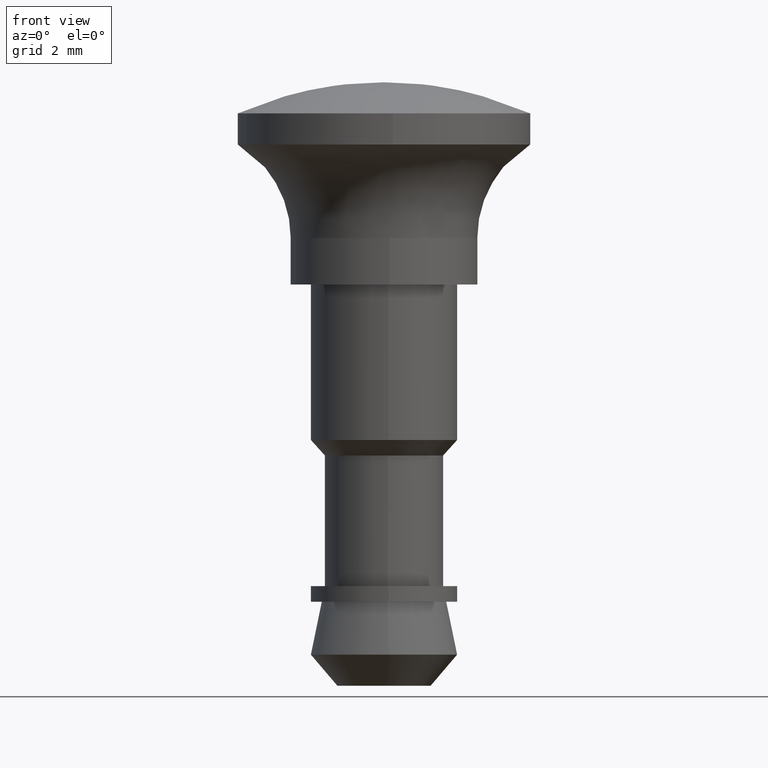
[diagram: clean part render]
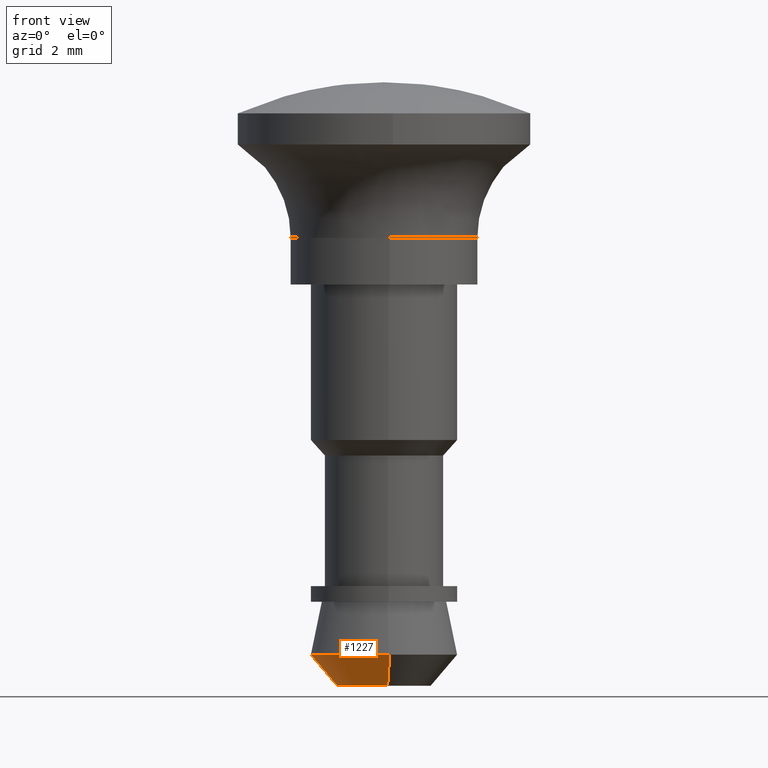
[diagram: same view with one face highlighted and labeled with its STEP entity id]
A machine part, front view. The second image highlights one B-rep face of the part: STEP entity #1227.
In plain terms, the highlighted face is a freeform B-spline surface patch.
Its self-contained STEP definition (entity closure, byte-faithful):
#1016=CARTESIAN_POINT('',(0.143462680722005,-2.345597286102278,-11.900205081862090));
#1017=VERTEX_POINT('',#1016);
#1023=CARTESIAN_POINT('',(0.184377345371360,-2.342736298536056,-11.900205289215339));
#1024=VERTEX_POINT('',#1023);
#1025=CARTESIAN_POINT('',(0.184377345371360,-2.342736298536056,-11.900205289215343));
#1026=CARTESIAN_POINT('',(0.163932401260749,-2.344345350529565,-11.900205289220658));
#1027=CARTESIAN_POINT('',(0.143462680722006,-2.345597286102278,-11.900205081862081));
#1035=(BOUNDED_CURVE()B_SPLINE_CURVE(2,(#1025,#1026,#1027),.UNSPECIFIED.,.F.,.U.)B_SPLINE_CURVE_WITH_KNOTS((3,3),(0.736331300627446,0.739332990840911),.UNSPECIFIED.)CURVE()GEOMETRIC_REPRESENTATION_ITEM()RATIONAL_B_SPLINE_CURVE((0.969723356160711,0.972855505401554,0.976072102966187))REPRESENTATION_ITEM(''));
#1036=EDGE_CURVE('',#1024,#1017,#1035,.T.);
#1076=CARTESIAN_POINT('',(-0.184377345371360,2.342736298536056,-11.900205289215339));
#1077=VERTEX_POINT('',#1076);
#1093=CARTESIAN_POINT('',(-2.349980504162365,0.0,-11.900205289220660));
#1094=VERTEX_POINT('',#1093);
#1095=CARTESIAN_POINT('',(-2.349980504162365,0.0,-11.900205289220660));
#1096=CARTESIAN_POINT('',(-2.349980504162365,2.172299633562215,-11.900205289220660));
#1097=CARTESIAN_POINT('',(-0.184377345371360,2.342736298536056,-11.900205289215343));
#1105=(BOUNDED_CURVE()B_SPLINE_CURVE(2,(#1095,#1096,#1097),.UNSPECIFIED.,.F.,.U.)B_SPLINE_CURVE_WITH_KNOTS((3,3),(0.0,0.236331300627446),.UNSPECIFIED.)CURVE()GEOMETRIC_REPRESENTATION_ITEM()RATIONAL_B_SPLINE_CURVE((1.0,0.723120658611431,0.969723356160711))REPRESENTATION_ITEM(''));
#1106=EDGE_CURVE('',#1094,#1077,#1105,.T.);
#1108=CARTESIAN_POINT('',(0.143462680722005,-2.345597286102279,-11.900205081862085));
#1109=CARTESIAN_POINT('',(0.071798203168230,-2.349980504162364,-11.900205289220660));
#1110=CARTESIAN_POINT('',(0.0,-2.349980504162365,-11.900205289220660));
#1111=CARTESIAN_POINT('',(-2.349980504162365,-2.349980504162365,-11.900205289220660));
#1112=CARTESIAN_POINT('',(-2.349980504162365,0.0,-11.900205289220660));
#1120=(BOUNDED_CURVE()B_SPLINE_CURVE(2,(#1108,#1109,#1110,#1111,#1112),.UNSPECIFIED.,.F.,.U.)B_SPLINE_CURVE_WITH_KNOTS((3,2,3),(0.739332990840912,0.750000000000000,1.0),.UNSPECIFIED.)CURVE()GEOMETRIC_REPRESENTATION_ITEM()RATIONAL_B_SPLINE_CURVE((0.976072102966189,0.987502821409128,1.0,0.707106781186548,1.0))REPRESENTATION_ITEM(''));
#1121=EDGE_CURVE('',#1017,#1094,#1120,.T.);
#1160=CARTESIAN_POINT('',(-0.116013383990884,1.474089809124613,-12.925302367769479));
#1161=CARTESIAN_POINT('',(-1.590103193115497,1.358076425133729,-12.925302367769484));
#1162=CARTESIAN_POINT('',(-1.474089809124613,-0.116013383990884,-12.925302367769479));
#1163=CARTESIAN_POINT('',(-1.358076425133729,-1.590103193115497,-12.925302367769484));
#1164=CARTESIAN_POINT('',(0.116013383990884,-1.474089809124613,-12.925302367769479));
#1165=CARTESIAN_POINT('',(-0.186086444368246,2.364452460769696,-11.874577862256940));
#1166=CARTESIAN_POINT('',(-2.550538905137942,2.178366016401451,-11.874577862256936));
#1167=CARTESIAN_POINT('',(-2.364452460769696,-0.186086444368246,-11.874577862256940));
#1168=CARTESIAN_POINT('',(-2.178366016401451,-2.550538905137942,-11.874577862256936));
#1169=CARTESIAN_POINT('',(0.186086444368246,-2.364452460769696,-11.874577862256940));
#1177=(BOUNDED_SURFACE()B_SPLINE_SURFACE(2,1,((#1160,#1165),(#1161,#1166),(#1162,#1167),(#1163,#1168),(#1164,#1169)),.UNSPECIFIED.,.F.,.F.,.U.)B_SPLINE_SURFACE_WITH_KNOTS((3,2,3),(2,2),(0.0,3.929666959123920,7.859333918247839),(0.0,1.0),.UNSPECIFIED.)GEOMETRIC_REPRESENTATION_ITEM()RATIONAL_B_SPLINE_SURFACE(((1.0,1.0),(0.707106781186548,0.707106781186548),(1.0,1.0),(0.707106781186548,0.707106781186548),(1.0,1.0)))REPRESENTATION_ITEM('')SURFACE());
#1178=ORIENTED_EDGE('',*,*,#1106,.T.);
#1179=CARTESIAN_POINT('',(-0.117680797714486,1.495276308867754,-12.900299999995340));
#1180=VERTEX_POINT('',#1179);
#1181=CARTESIAN_POINT('',(-0.117680797714486,1.495276308867754,-12.900299999995340));
#1182=CARTESIAN_POINT('',(-0.184377345371360,2.342736298536056,-11.900205289215339));
#1183=QUASI_UNIFORM_CURVE('',1,(#1181,#1182),.UNSPECIFIED.,.F.,.U.);
#1184=EDGE_CURVE('',#1180,#1077,#1183,.T.);
#1185=ORIENTED_EDGE('',*,*,#1184,.F.);
#1186=CARTESIAN_POINT('',(-1.499900000000000,0.0,-12.900300000000000));
#1187=VERTEX_POINT('',#1186);
#1188=CARTESIAN_POINT('',(-1.499900000000000,0.0,-12.900300000000000));
#1189=CARTESIAN_POINT('',(-1.499900000000000,1.386493298378654,-12.900299999999998));
#1190=CARTESIAN_POINT('',(-0.117680797714486,1.495276308867754,-12.900299999995338));
#1198=(BOUNDED_CURVE()B_SPLINE_CURVE(2,(#1188,#1189,#1190),.UNSPECIFIED.,.F.,.U.)B_SPLINE_CURVE_WITH_KNOTS((3,3),(0.0,0.236331300625434),.UNSPECIFIED.)CURVE()GEOMETRIC_REPRESENTATION_ITEM()RATIONAL_B_SPLINE_CURVE((1.0,0.723120658613787,0.969723356156513))REPRESENTATION_ITEM(''));
#1199=EDGE_CURVE('',#1187,#1180,#1198,.T.);
#1200=ORIENTED_EDGE('',*,*,#1199,.F.);
#1201=CARTESIAN_POINT('',(0.117680797714486,-1.495276308867754,-12.900299999995340));
#1202=VERTEX_POINT('',#1201);
#1203=CARTESIAN_POINT('',(0.117680797714486,-1.495276308867754,-12.900299999995337));
#1204=CARTESIAN_POINT('',(0.058931231532932,-1.499900000000000,-12.900300000000003));
#1205=CARTESIAN_POINT('',(0.0,-1.499900000000000,-12.900300000000000));
#1206=CARTESIAN_POINT('',(-1.499899999999999,-1.499899999999999,-12.900299999999998));
#1207=CARTESIAN_POINT('',(-1.499900000000000,0.0,-12.900300000000000));
#1215=(BOUNDED_CURVE()B_SPLINE_CURVE(2,(#1203,#1204,#1205,#1206,#1207),.UNSPECIFIED.,.F.,.U.)B_SPLINE_CURVE_WITH_KNOTS((3,2,3),(0.736331300625434,0.750000000000000,1.0),.UNSPECIFIED.)CURVE()GEOMETRIC_REPRESENTATION_ITEM()RATIONAL_B_SPLINE_CURVE((0.969723356156513,0.983986122572760,1.0,0.707106781186547,1.0))REPRESENTATION_ITEM(''));
#1216=EDGE_CURVE('',#1202,#1187,#1215,.T.);
#1217=ORIENTED_EDGE('',*,*,#1216,.F.);
#1218=CARTESIAN_POINT('',(0.117680797714486,-1.495276308867754,-12.900299999995340));
#1219=CARTESIAN_POINT('',(0.184377345371360,-2.342736298536056,-11.900205289215339));
#1220=QUASI_UNIFORM_CURVE('',1,(#1218,#1219),.UNSPECIFIED.,.F.,.U.);
#1221=EDGE_CURVE('',#1202,#1024,#1220,.T.);
#1222=ORIENTED_EDGE('',*,*,#1221,.T.);
#1223=ORIENTED_EDGE('',*,*,#1036,.T.);
#1224=ORIENTED_EDGE('',*,*,#1121,.T.);
#1225=EDGE_LOOP('',(#1178,#1185,#1200,#1217,#1222,#1223,#1224));
#1226=FACE_OUTER_BOUND('',#1225,.T.);
#1227=ADVANCED_FACE('',(#1226),#1177,.T.);